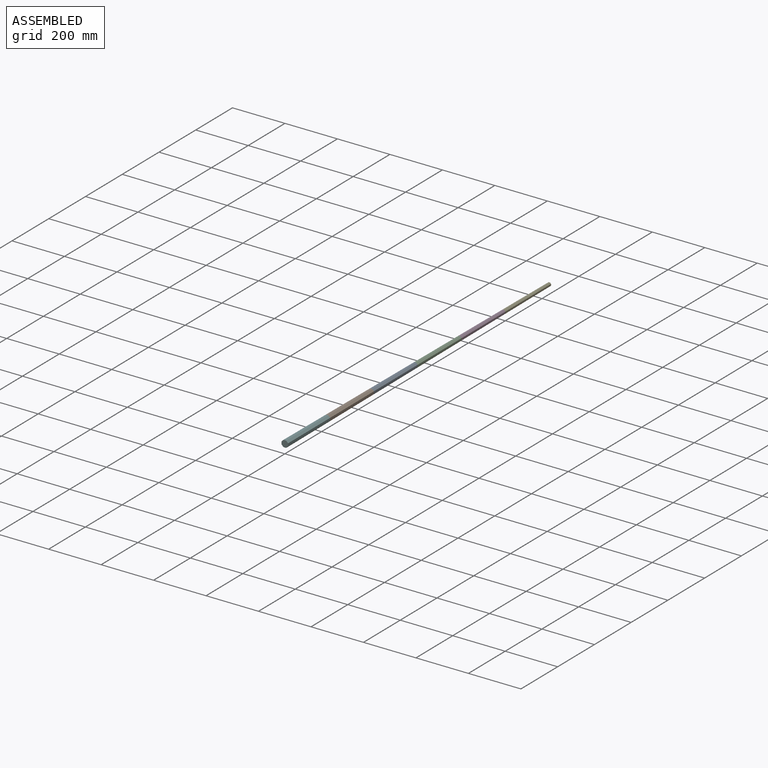
[diagram: assembled view]
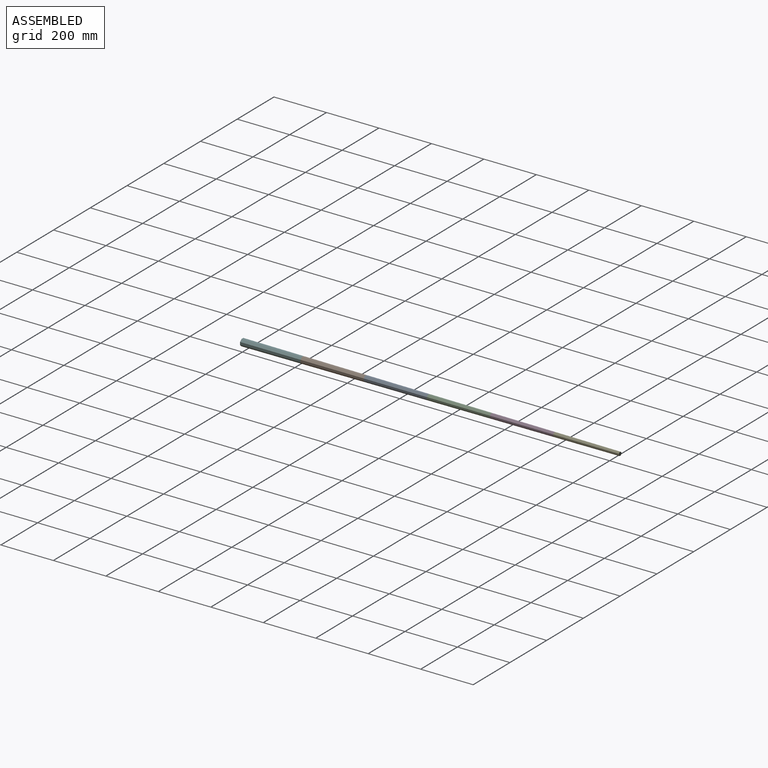
[diagram: assembled view, second angle]
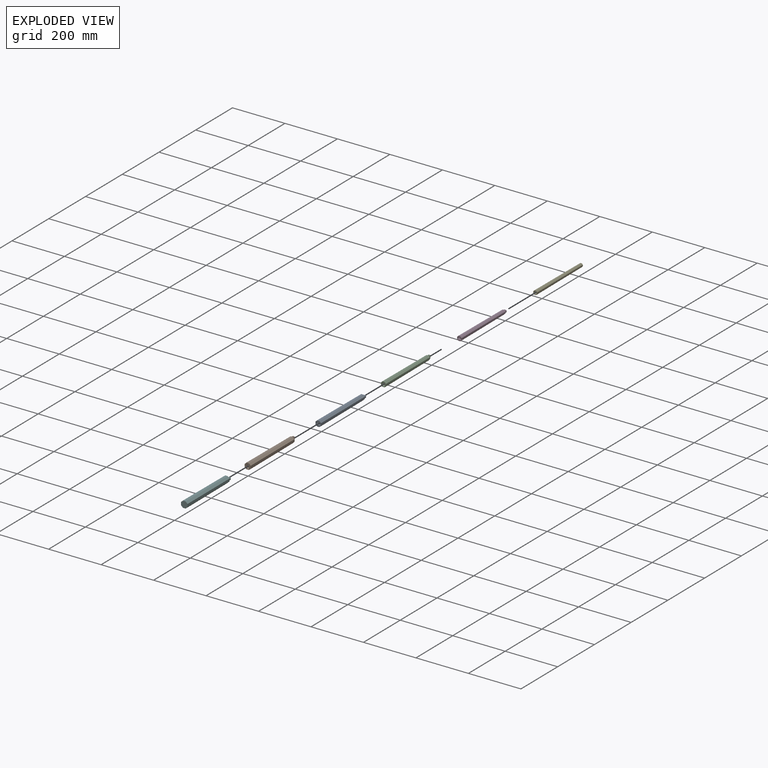
[diagram: exploded view]
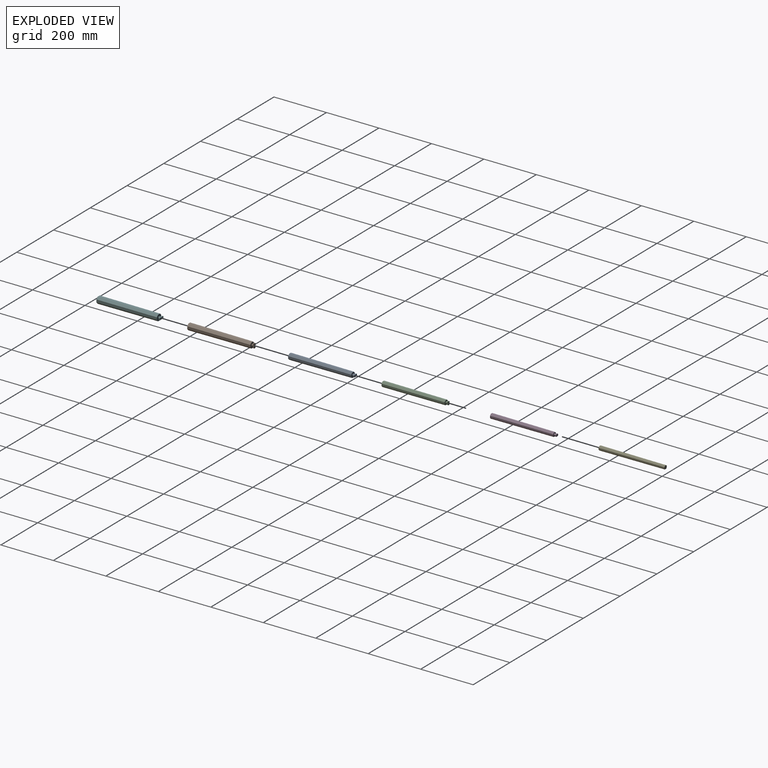
[diagram: exploded view, second angle]
ASSEMBLY  parts=6 mates=5
PART A: 24 faces, bbox 21.1x249.7x21.1 mm
  f0: plane 13.02x4.4mm, normal (0,0,1), area 57.3mm2, adj f16,f17,f18,f20,f21
  f1: plane 19.08x19.08mm, normal (0,1,0), area 251.4mm2, adj f4,f5,f6,f7,f8,f9,f10,f11
  f2: cylinder r=8.94mm len=17.88mm, axis (0,-1,0), area 370.5mm2, adj f3,f12,f13,f14,f22,f23
  f3: plane 21.08x21.08mm, normal (0,-1,0), area 220.6mm2, adj f2,f4,f5,f6,f7,f8,f9,f10
  f4: plane 240x8.73mm, normal (1,0,0), area 1996.5mm2, adj f1,f3,f5,f11
  f5: plane 240x6.59mm, normal (0.71,0,-0.71), area 1996.5mm2, adj f1,f3,f4,f6
  f6: plane 240x8.73mm, normal (0,0,-1), area 1996.5mm2, adj f1,f3,f5,f7
  f7: plane 240x6.59mm, normal (-0.71,0,-0.71), area 1996.5mm2, adj f1,f3,f6,f8
  f8: plane 240x8.73mm, normal (-1,0,0), area 1996.5mm2, adj f1,f3,f7,f9
  f9: plane 240x6.59mm, normal (-0.71,0,0.71), area 1996.5mm2, adj f1,f3,f8,f10
  f10: plane 240x8.73mm, normal (0,0,1), area 1996.5mm2, adj f1,f3,f9,f11
  f11: plane 240x6.59mm, normal (0.71,0,0.71), area 1996.5mm2, adj f1,f3,f4,f10
  f12: plane 17.88x17.88mm, normal (0,-1,0), area 251.2mm2, adj f2
  f13: plane 15.68x4.7mm, normal (0,0,-1), area 73.7mm2, adj f2,f3,f23
  f14: plane 15.68x4.7mm, normal (0,0,1), area 73.7mm2, adj f2,f3,f22
  f15: plane 13.02x4.4mm, normal (0,0,-1), area 57.3mm2, adj f16,f17,f18,f20,f21
  f16: cylinder r=7.64mm len=8mm, axis (0,-1,0), area 37mm2, adj f0,f15,f18,f21
  f17: cylinder r=7.64mm len=8mm, axis (0,-1,0), area 37mm2, adj f0,f15,f18,f20
  f18: plane 15.28x8mm, normal (0,1,0), area 116.4mm2, adj f0,f15,f16,f17
  f19: cylinder r=4mm len=8mm, axis (0,-1,0), area 133.2mm2, adj f1,f20,f21
  f20: plane 8x7.64mm, normal (0,-1,0), area 33.1mm2, adj f0,f15,f17,f19
  f21: plane 8x7.64mm, normal (0,-1,0), area 33.1mm2, adj f0,f15,f16,f19
  f22: plane 15.68x4.64mm, normal (0,1,0.1), area 52mm2, adj f2,f14
  f23: plane 15.68x4.64mm, normal (0,1,-0.1), area 52mm2, adj f2,f13
PART B: 24 faces, bbox 23.1x249.7x23.1 mm
  f0: plane 15.32x4.4mm, normal (0,0,1), area 67.4mm2, adj f15,f17,f18,f20,f21
  f1: plane 21.08x21.08mm, normal (0,1,0), area 318mm2, adj f4,f5,f6,f7,f8,f9,f10,f11
  f2: cylinder r=9.94mm len=19.88mm, axis (0,-1,0), area 398.2mm2, adj f3,f12,f13,f14,f22,f23
  f3: plane 23.08x23.08mm, normal (0,-1,0), area 275.9mm2, adj f2,f4,f5,f6,f7,f8,f9,f10
  f4: plane 240x7.18mm, normal (0.71,0,0.71), area 2195.4mm2, adj f1,f3,f5,f11
  f5: plane 240x9.56mm, normal (0,0,1), area 2195.4mm2, adj f1,f3,f4,f6
  f6: plane 240x7.18mm, normal (-0.71,0,0.71), area 2195.4mm2, adj f1,f3,f5,f7
  f7: plane 240x9.56mm, normal (-1,0,0), area 2195.4mm2, adj f1,f3,f6,f8
  f8: plane 240x7.18mm, normal (-0.71,0,-0.71), area 2195.4mm2, adj f1,f3,f7,f9
  f9: plane 240x9.56mm, normal (0,0,-1), area 2195.4mm2, adj f1,f3,f8,f10
  f10: plane 240x7.18mm, normal (0.71,0,-0.71), area 2195.4mm2, adj f1,f3,f9,f11
  f11: plane 240x9.56mm, normal (1,0,0), area 2195.4mm2, adj f1,f3,f4,f10
  f12: plane 19.88x19.88mm, normal (0,-1,0), area 310.5mm2, adj f2
  f13: plane 17.93x4.7mm, normal (0,0,-1), area 84.3mm2, adj f2,f3,f23
  f14: plane 17.93x4.7mm, normal (0,0,1), area 84.3mm2, adj f2,f3,f22
  f15: cylinder r=8.64mm len=8mm, axis (0,-1,0), area 36.6mm2, adj f0,f16,f18,f20
  f16: plane 15.32x4.4mm, normal (0,0,-1), area 67.4mm2, adj f15,f17,f18,f20,f21
  f17: cylinder r=8.64mm len=8mm, axis (0,-1,0), area 36.6mm2, adj f0,f16,f18,f21
  f18: plane 17.28x8mm, normal (0,1,0), area 133.2mm2, adj f0,f15,f16,f17
  f19: cylinder r=4mm len=8mm, axis (0,-1,0), area 133.2mm2, adj f1,f20,f21
  f20: plane 8.64x8mm, normal (0,-1,0), area 41.4mm2, adj f0,f15,f16,f19
  f21: plane 8.64x8mm, normal (0,-1,0), area 41.4mm2, adj f0,f16,f17,f19
  f22: plane 17.93x5.64mm, normal (0,1,0.1), area 72.9mm2, adj f2,f14
  f23: plane 17.93x5.64mm, normal (0,1,-0.1), area 72.9mm2, adj f2,f13
PART C: 24 faces, bbox 19.1x249.7x19.1 mm
  f0: plane 10.6x4.4mm, normal (0,0,1), area 46.7mm2, adj f15,f17,f18,f20,f21
  f1: plane 17.08x17.08mm, normal (0,1,0), area 191.5mm2, adj f4,f5,f6,f7,f8,f9,f10,f11
  f2: cylinder r=7.94mm len=15.88mm, axis (0,-1,0), area 342.3mm2, adj f3,f12,f13,f14,f22,f23
  f3: plane 19.08x19.08mm, normal (0,-1,0), area 172.1mm2, adj f2,f4,f5,f6,f7,f8,f9,f10
  f4: plane 240x6mm, normal (0.71,0,0.71), area 1797.7mm2, adj f1,f3,f5,f11
  f5: plane 240x7.9mm, normal (0,0,1), area 1797.7mm2, adj f1,f3,f4,f6
  f6: plane 240x6mm, normal (-0.71,0,0.71), area 1797.7mm2, adj f1,f3,f5,f7
  f7: plane 240x7.9mm, normal (-1,0,0), area 1797.7mm2, adj f1,f3,f6,f8
  f8: plane 240x6mm, normal (-0.71,0,-0.71), area 1797.7mm2, adj f1,f3,f7,f9
  f9: plane 240x7.9mm, normal (0,0,-1), area 1797.7mm2, adj f1,f3,f8,f10
  f10: plane 240x6mm, normal (0.71,0,-0.71), area 1797.7mm2, adj f1,f3,f9,f11
  f11: plane 240x7.9mm, normal (1,0,0), area 1797.7mm2, adj f1,f3,f4,f10
  f12: plane 15.88x15.88mm, normal (0,-1,0), area 198.1mm2, adj f2
  f13: plane 13.35x4.7mm, normal (0,0,-1), area 62.8mm2, adj f2,f3,f22
  f14: plane 13.35x4.7mm, normal (0,0,1), area 62.8mm2, adj f2,f3,f23
  f15: cylinder r=6.64mm len=8mm, axis (0,-1,0), area 37.8mm2, adj f0,f16,f18,f20
  f16: plane 10.6x4.4mm, normal (0,0,-1), area 46.7mm2, adj f15,f17,f18,f20,f21
  f17: cylinder r=6.64mm len=8mm, axis (0,-1,0), area 37.8mm2, adj f0,f16,f18,f21
  f18: plane 13.28x8mm, normal (0,1,0), area 99.4mm2, adj f0,f15,f16,f17
  f19: cylinder r=4mm len=8mm, axis (0,-1,0), area 133.2mm2, adj f1,f20,f21
  f20: plane 8x6.64mm, normal (0,-1,0), area 24.6mm2, adj f0,f15,f16,f19
  f21: plane 8x6.64mm, normal (0,-1,0), area 24.6mm2, adj f0,f16,f17,f19
  f22: plane 13.35x3.64mm, normal (0,1,-0.1), area 34.4mm2, adj f2,f13
  f23: plane 13.35x3.64mm, normal (0,1,0.1), area 34.4mm2, adj f2,f14
PART D: 24 faces, bbox 17.1x249.7x17.1 mm
  f0: plane 15.08x15.08mm, normal (0,1,0), area 138.2mm2, adj f3,f4,f5,f6,f7,f8,f9,f10
  f1: cylinder r=6.94mm len=13.88mm, axis (0,-1,0), area 314mm2, adj f2,f11,f12,f13,f22,f23
  f2: plane 17.08x17.08mm, normal (0,-1,0), area 130.5mm2, adj f1,f3,f4,f5,f6,f7,f8,f9
  f3: plane 240x7.08mm, normal (1,0,0), area 1598.9mm2, adj f0,f2,f4,f10
  f4: plane 240x5.42mm, normal (0.71,0,-0.71), area 1598.9mm2, adj f0,f2,f3,f5
  f5: plane 240x7.08mm, normal (0,0,-1), area 1598.9mm2, adj f0,f2,f4,f6
  f6: plane 240x5.42mm, normal (-0.71,0,-0.71), area 1598.9mm2, adj f0,f2,f5,f7
  f7: plane 240x7.08mm, normal (-1,0,0), area 1598.9mm2, adj f0,f2,f6,f8
  f8: plane 240x5.42mm, normal (-0.71,0,0.71), area 1598.9mm2, adj f0,f2,f7,f9
  f9: plane 240x7.08mm, normal (0,0,1), area 1598.9mm2, adj f0,f2,f8,f10
  f10: plane 240x5.42mm, normal (0.71,0,0.71), area 1598.9mm2, adj f0,f2,f3,f9
  f11: plane 13.88x13.88mm, normal (0,-1,0), area 151.4mm2, adj f1
  f12: plane 10.9x4.7mm, normal (0,0,-1), area 51.2mm2, adj f1,f2,f23
  f13: plane 10.9x4.7mm, normal (0,0,1), area 51.2mm2, adj f1,f2,f22
  f14: plane 7.96x4.4mm, normal (0,0,-1), area 35mm2, adj f15,f17,f18,f20,f21
  f15: cylinder r=5.64mm len=8mm, axis (0,-1,0), area 39.1mm2, adj f14,f16,f18,f20
  f16: plane 7.96x4.4mm, normal (0,0,1), area 35mm2, adj f15,f17,f18,f20,f21
  f17: cylinder r=5.64mm len=8mm, axis (0,-1,0), area 39.1mm2, adj f14,f16,f18,f21
  f18: plane 11.28x8mm, normal (0,1,0), area 82mm2, adj f14,f15,f16,f17
  f19: cylinder r=4mm len=8mm, axis (0,-1,0), area 133.2mm2, adj f0,f20,f21
  f20: plane 8x5.64mm, normal (0,-1,0), area 15.9mm2, adj f14,f15,f16,f19
  f21: plane 8x5.64mm, normal (0,-1,0), area 15.9mm2, adj f14,f16,f17,f19
  f22: plane 10.9x2.64mm, normal (0,1,0.1), area 20.2mm2, adj f1,f13
  f23: plane 10.9x2.64mm, normal (0,1,-0.1), area 20.2mm2, adj f1,f12
PART E: 16 faces, bbox 15.1x250x15.1 mm
  f0: cylinder r=5.94mm len=11.88mm, axis (0,-1,0), area 286.3mm2, adj f1,f11,f12,f13,f14,f15
  f1: plane 15.08x15.08mm, normal (0,-1,0), area 96.1mm2, adj f0,f3,f4,f5,f6,f7,f8,f9
  f2: plane 13x13mm, normal (0,1,0), area 140mm2, adj f3,f4,f5,f6,f7,f8,f9,f10
  f3: plane 250x4.85mm, normal (0.71,0,0.71), area 1454.1mm2, adj f1,f2,f4,f10
  f4: plane 250x6.25mm, normal (0,0,1), area 1454.1mm2, adj f1,f2,f3,f5
  f5: plane 250x4.85mm, normal (-0.71,0,0.71), area 1454.1mm2, adj f1,f2,f4,f6
  f6: plane 250x6.25mm, normal (-1,0,0), area 1454.1mm2, adj f1,f2,f5,f7
  f7: plane 250x4.85mm, normal (-0.71,0,-0.71), area 1454.1mm2, adj f1,f2,f6,f8
  f8: plane 250x6.25mm, normal (0,0,-1), area 1454.1mm2, adj f1,f2,f7,f9
  f9: plane 250x4.85mm, normal (0.71,0,-0.71), area 1454.1mm2, adj f1,f2,f8,f10
  f10: plane 250x6.25mm, normal (1,0,0), area 1454.1mm2, adj f1,f2,f3,f9
  f11: plane 11.88x11.88mm, normal (0,-1,0), area 110.9mm2, adj f0
  f12: plane 8.2x4.7mm, normal (0,0,-1), area 38.5mm2, adj f0,f1,f15
  f13: plane 8.2x4.7mm, normal (0,0,1), area 38.5mm2, adj f0,f1,f14
  f14: plane 8.2x1.64mm, normal (0,1,0.1), area 9.3mm2, adj f0,f13
  f15: plane 8.2x1.64mm, normal (0,1,-0.1), area 9.3mm2, adj f0,f12
PART F: 18 faces, bbox 25x239.7x25 mm
  f0: plane 17.55x4.4mm, normal (0,0,1), area 77.2mm2, adj f11,f13,f14,f16,f17
  f1: plane 23.08x23.08mm, normal (0,1,0), area 391.2mm2, adj f3,f4,f5,f6,f7,f8,f9,f10
  f2: plane 25x25mm, normal (0,-1,0), area 517.8mm2, adj f3,f4,f5,f6,f7,f8,f9,f10
  f3: plane 230x10.36mm, normal (1,0,0), area 2290.4mm2, adj f1,f2,f4,f10
  f4: plane 230x7.72mm, normal (0.71,0,-0.71), area 2290.4mm2, adj f1,f2,f3,f5
  f5: plane 230x10.36mm, normal (0,0,-1), area 2290.4mm2, adj f1,f2,f4,f6
  f6: plane 230x7.72mm, normal (-0.71,0,-0.71), area 2290.4mm2, adj f1,f2,f5,f7
  f7: plane 230x10.36mm, normal (-1,0,0), area 2290.4mm2, adj f1,f2,f6,f8
  f8: plane 230x7.72mm, normal (-0.71,0,0.71), area 2290.4mm2, adj f1,f2,f7,f9
  f9: plane 230x10.36mm, normal (0,0,1), area 2290.4mm2, adj f1,f2,f8,f10
  f10: plane 230x7.72mm, normal (0.71,0,0.71), area 2290.4mm2, adj f1,f2,f3,f9
  f11: cylinder r=9.64mm len=8mm, axis (0,-1,0), area 36.3mm2, adj f0,f12,f14,f16
  f12: plane 17.55x4.4mm, normal (0,0,-1), area 77.2mm2, adj f11,f13,f14,f16,f17
  f13: cylinder r=9.64mm len=8mm, axis (0,-1,0), area 36.3mm2, adj f0,f12,f14,f17
  f14: plane 19.28x8mm, normal (0,1,0), area 149.7mm2, adj f0,f11,f12,f13
  f15: cylinder r=4mm len=8mm, axis (0,-1,0), area 133.2mm2, adj f1,f16,f17
  f16: plane 9.64x8mm, normal (0,-1,0), area 49.7mm2, adj f0,f11,f12,f15
  f17: plane 9.64x8mm, normal (0,-1,0), area 49.7mm2, adj f0,f12,f13,f15
PLACE A at identity
PLACE B rot(axis=(0,1,0),90deg) t=(0,0,0)mm
PLACE C rot(axis=(0,1,0),90deg) t=(0,0,0)mm
PLACE D at identity
PLACE E rot(axis=(0,1,0),90deg) t=(0,0,0)mm
PLACE F at identity
MATE fastened B.f2 <-> F.f11  axis (0,-1,0) through (0,230,0)mm
MATE fastened C.f2 <-> A.f2  axis (0,-1,0) through (0,710,0)mm
MATE fastened E.f0 <-> D.f1  axis (0,-1,0) through (0,1190,0)mm
MATE fastened D.f1 <-> C.f2  axis (0,-1,0) through (0,950,0)mm
MATE fastened A.f2 <-> B.f2  axis (0,-1,0) through (0,470,0)mm
